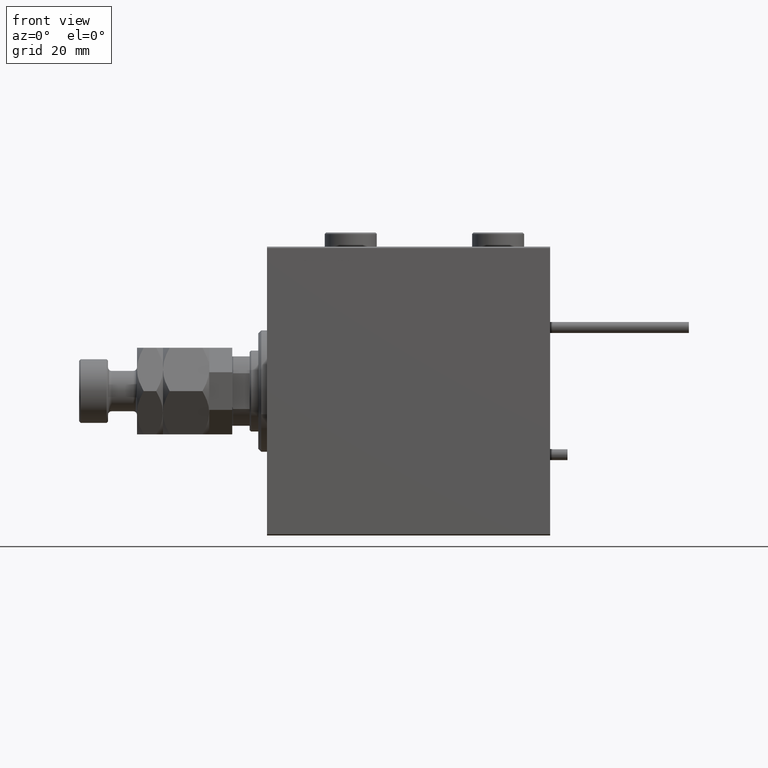
[diagram: clean part render]
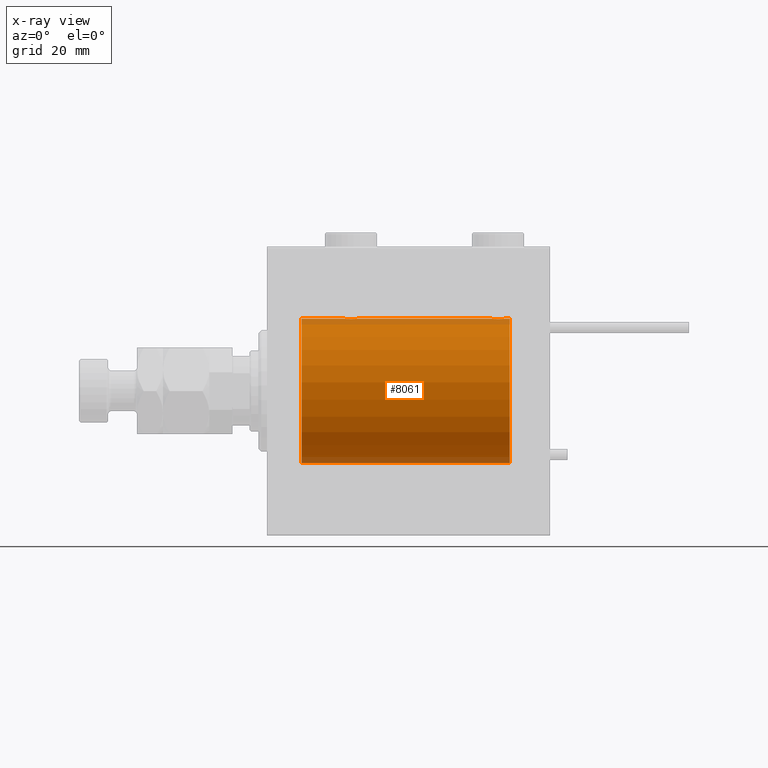
[diagram: x-ray — body ghosted, one internal face saturated and labeled with its STEP entity id]
A machine part, front view, then the same camera in x-ray: the body is ghosted and one INTERNAL B-rep face — a face not visible from any outside direction — is saturated and labeled: STEP entity #8061.
In plain terms, the highlighted cylindrical surface (partial cylindrical patch) has radius 25 mm, axis along (-1, -0, -0).
Its self-contained STEP definition (entity closure, byte-faithful):
#224 = CARTESIAN_POINT ( 'NONE',  ( 82.42014909220931429, -0.6480119923854192887, -24.99212088949390420 ) ) ;
#1283 = CARTESIAN_POINT ( 'NONE',  ( 78.34878866440890022, -1.884161199660611796, -24.92916496727982434 ) ) ;
#1881 = CARTESIAN_POINT ( 'NONE',  ( 84.00000000000000000, 3.061616997868382254E-15, -25.00000000000000000 ) ) ;
#2034 = ORIENTED_EDGE ( 'NONE', *, *, #38113, .F. ) ;
#2071 = CARTESIAN_POINT ( 'NONE',  ( 82.50000000000005684, -0.3305063766663752789, 25.00000000000000711 ) ) ;
#2136 = CARTESIAN_POINT ( 'NONE',  ( 26.62784030591392437, -0.8058335233485456328, 24.98746277938383287 ) ) ;
#2198 = CARTESIAN_POINT ( 'NONE',  ( 84.00000000000000000, 0.000000000000000000, 25.00000000000000000 ) ) ;
#2329 = CARTESIAN_POINT ( 'NONE',  ( 77.75239748980452248, -1.106703319666886065, 24.97594585958023572 ) ) ;
#2639 = EDGE_CURVE ( 'NONE', #19902, #45324, #31787, .T. ) ;
#3039 = ORIENTED_EDGE ( 'NONE', *, *, #48956, .T. ) ;
#3164 = VECTOR ( 'NONE', #40621, 1000.000000000000000 ) ;
#3673 = CARTESIAN_POINT ( 'NONE',  ( 31.16827641493957302, -1.255214705003182774, 24.96884293994578385 ) ) ;
#3927 = CARTESIAN_POINT ( 'NONE',  ( 31.50000000000000000, -0.1631750940176179276, -25.00000000000001421 ) ) ;
#3939 = CARTESIAN_POINT ( 'NONE',  ( 31.49999999999999289, -0.3305063766663730029, 25.00000000000000355 ) ) ;
#4126 = EDGE_CURVE ( 'NONE', #53110, #36376, #31856, .T. ) ;
#4138 = CYLINDRICAL_SURFACE ( 'NONE', #13040, 25.00000000000000000 ) ;
#4195 = CARTESIAN_POINT ( 'NONE',  ( 29.64904390169096615, -2.419770561643903584, -24.88263927071751169 ) ) ;
#5003 = CARTESIAN_POINT ( 'NONE',  ( 26.50000000000000355, -1.030486103406027476E-15, -25.00000000000000000 ) ) ;
#5169 = ORIENTED_EDGE ( 'NONE', *, *, #2639, .T. ) ;
#5608 = CARTESIAN_POINT ( 'NONE',  ( 79.67052319885733880, -2.483544361357268304, 24.87635491893502149 ) ) ;
#6111 = CARTESIAN_POINT ( 'NONE',  ( 79.19211657594196652, -2.371528299825746089, 24.88734287464371420 ) ) ;
#6383 = CARTESIAN_POINT ( 'NONE',  ( 78.47463817756926119, -1.987446652080266496, 24.92104239223421303 ) ) ;
#6711 = CARTESIAN_POINT ( 'NONE',  ( 27.74616804575497042, -2.169003991399871989, 24.90589728951139037 ) ) ;
#6973 = CARTESIAN_POINT ( 'NONE',  ( 30.65121133559111755, -1.884161199660619124, 24.92916496727982079 ) ) ;
#7779 = CARTESIAN_POINT ( 'NONE',  ( 81.11036796508868463, -2.245863995402891611, -24.89899750494197406 ) ) ;
#7982 = CARTESIAN_POINT ( 'NONE',  ( 30.10723845838410284, -2.247417070759899271, 24.89885693081946272 ) ) ;
#8061 = ADVANCED_FACE ( 'NONE', ( #11967 ), #4138, .F. ) ;
#8236 = CARTESIAN_POINT ( 'NONE',  ( 28.67403429960540251, -2.484007091859758543, -24.87630842367763151 ) ) ;
#8502 = CARTESIAN_POINT ( 'NONE',  ( 30.52536182243080987, -1.987446652080259835, -24.92104239223420592 ) ) ;
#8581 = CARTESIAN_POINT ( 'NONE',  ( 82.49999999999998579, -0.1631750940176179554, -25.00000000000000711 ) ) ;
#8725 = DIRECTION ( 'NONE',  ( -1.000000000000000000, -0.000000000000000000, -0.000000000000000000 ) ) ;
#8773 = CARTESIAN_POINT ( 'NONE',  ( 26.56650644760252433, -0.6588655613945860745, -24.99312727339969342 ) ) ;
#9047 = CARTESIAN_POINT ( 'NONE',  ( 28.83676410361455567, -2.500125740978187405, -24.87467329022544504 ) ) ;
#9306 = CARTESIAN_POINT ( 'NONE',  ( 31.42014909220929653, -0.6480119923854196218, -24.99212088949391131 ) ) ;
#9383 = CARTESIAN_POINT ( 'NONE',  ( 77.50000000000004263, -0.3305063766663757230, -25.00000000000002132 ) ) ;
#9459 = ORIENTED_EDGE ( 'NONE', *, *, #29476, .T. ) ;
#10158 = CARTESIAN_POINT ( 'NONE',  ( 80.32596570039464723, -2.484007091859760763, 24.87630842367763861 ) ) ;
#10412 = CARTESIAN_POINT ( 'NONE',  ( 79.35095609830904095, -2.419770561643906248, 24.88263927071751169 ) ) ;
#10685 = CARTESIAN_POINT ( 'NONE',  ( 81.10723845838413126, -2.247417070759893942, 24.89885693081947338 ) ) ;
#10695 = ORIENTED_EDGE ( 'NONE', *, *, #4126, .T. ) ;
#11831 = CARTESIAN_POINT ( 'NONE',  ( 79.83676410361458409, -2.500125740978184741, -24.87467329022545215 ) ) ;
#11967 = FACE_OUTER_BOUND ( 'NONE', #27284, .T. ) ;
#12093 = CARTESIAN_POINT ( 'NONE',  ( 80.32947680114270383, -2.483544361357259866, -24.87635491893501438 ) ) ;
#12289 = CARTESIAN_POINT ( 'NONE',  ( 30.25383195424502603, -2.169003991399866660, -24.90589728951139392 ) ) ;
#12302 = CARTESIAN_POINT ( 'NONE',  ( 27.01250184165601453, -1.525407911884367085, 24.95379469572361941 ) ) ;
#12370 = CARTESIAN_POINT ( 'NONE',  ( 81.88412382786472676, -1.651251241585097285, -24.94567559498348785 ) ) ;
#12827 = CARTESIAN_POINT ( 'NONE',  ( 28.19564339083697391, -2.372734907014166783, -24.88722742718433523 ) ) ;
#13040 = AXIS2_PLACEMENT_3D ( 'NONE', #37040, #25206, #16547 ) ;
#13093 = CARTESIAN_POINT ( 'NONE',  ( 26.50000000000000000, -0.3305063766663753344, -25.00000000000000000 ) ) ;
#13360 = CARTESIAN_POINT ( 'NONE',  ( 31.17011290280924385, -1.252049606094333800, -24.96900299967627390 ) ) ;
#13690 = EDGE_CURVE ( 'NONE', #17829, #53110, #26621, .T. ) ;
#14218 = CARTESIAN_POINT ( 'NONE',  ( 78.34616663850664509, -1.881857718844719640, 24.92933960374833902 ) ) ;
#14538 = CARTESIAN_POINT ( 'NONE',  ( 26.57985090779071413, -0.6480119923854232855, 24.99212088949390775 ) ) ;
#14730 = CARTESIAN_POINT ( 'NONE',  ( 78.88963203491135801, -2.245863995402899160, 24.89899750494197050 ) ) ;
#15067 = CARTESIAN_POINT ( 'NONE',  ( 28.83293504821939734, -2.499872792855082793, 24.87469871246082675 ) ) ;
#15607 = CARTESIAN_POINT ( 'NONE',  ( 81.65383336149336913, -1.881857718844710758, -24.92933960374833546 ) ) ;
#16288 = CARTESIAN_POINT ( 'NONE',  ( 84.00000000000000000, 0.000000000000000000, 0.000000000000000000 ) ) ;
#16409 = CARTESIAN_POINT ( 'NONE',  ( 82.48417840057655326, -0.3254210271412200095, -24.99840249400844172 ) ) ;
#16547 = DIRECTION ( 'NONE',  ( 0.000000000000000000, 0.000000000000000000, 1.000000000000000000 ) ) ;
#16649 = ORIENTED_EDGE ( 'NONE', *, *, #52383, .F. ) ;
#16875 = CARTESIAN_POINT ( 'NONE',  ( 31.24760251019550950, -1.106703319666880292, -24.97594585958023927 ) ) ;
#17213 = CARTESIAN_POINT ( 'NONE',  ( 79.19564339083696325, -2.372734907014162342, -24.88722742718433523 ) ) ;
#17748 = CARTESIAN_POINT ( 'NONE',  ( 77.75393620905936132, -1.109818057797410384, -24.97580694515541921 ) ) ;
#17829 = VERTEX_POINT ( 'NONE', #24871 ) ;
#18014 = VERTEX_POINT ( 'NONE', #1881 ) ;
#18521 = CARTESIAN_POINT ( 'NONE',  ( 77.50000000000001421, -1.940163953345817485E-23, 25.00000000000000000 ) ) ;
#18584 = CARTESIAN_POINT ( 'NONE',  ( 28.67052319885731393, -2.483544361357271413, 24.87635491893501438 ) ) ;
#19902 = VERTEX_POINT ( 'NONE', #31182 ) ;
#20405 = CARTESIAN_POINT ( 'NONE',  ( 31.50000000000000000, -3.363311788663921560E-15, 25.00000000000000000 ) ) ;
#20559 = DIRECTION ( 'NONE',  ( -1.000000000000000000, -0.000000000000000000, -0.000000000000000000 ) ) ;
#20653 = CARTESIAN_POINT ( 'NONE',  ( 30.98749815834399257, -1.525407911884361534, -24.95379469572363007 ) ) ;
#20977 = VERTEX_POINT ( 'NONE', #28750 ) ;
#21466 = CARTESIAN_POINT ( 'NONE',  ( 30.88412382786471255, -1.651251241585098617, -24.94567559498349141 ) ) ;
#21540 = CARTESIAN_POINT ( 'NONE',  ( 77.56650644760257762, -0.6588655613945836320, -24.99312727339971119 ) ) ;
#21661 = LINE ( 'NONE', #2198, #42056 ) ;
#21968 = ORIENTED_EDGE ( 'NONE', *, *, #46452, .T. ) ;
#22065 = CARTESIAN_POINT ( 'NONE',  ( 82.16827641493958367, -1.255214705003175446, 24.96884293994578030 ) ) ;
#22320 = CARTESIAN_POINT ( 'NONE',  ( 81.25084023924057419, -2.170728182476715951, 24.90574631553725027 ) ) ;
#22381 = LINE ( 'NONE', #46920, #51173 ) ;
#22575 = CARTESIAN_POINT ( 'NONE',  ( 80.80435660916305096, -2.372734907014170780, 24.88722742718433523 ) ) ;
#23168 = CARTESIAN_POINT ( 'NONE',  ( 28.19211657594193809, -2.371528299825748753, 24.88734287464371064 ) ) ;
#23440 = CARTESIAN_POINT ( 'NONE',  ( 30.88185954148646317, -1.653834020452940479, 24.94550385189585739 ) ) ;
#23879 = CARTESIAN_POINT ( 'NONE',  ( 84.00000000000000000, 0.000000000000000000, 25.00000000000000000 ) ) ;
#24172 = LINE ( 'NONE', #45185, #3164 ) ;
#24250 = CARTESIAN_POINT ( 'NONE',  ( 79.67403429960539540, -2.484007091859752769, -24.87630842367762796 ) ) ;
#24453 = CARTESIAN_POINT ( 'NONE',  ( 31.43349355239748988, -0.6588655613945876288, 24.99312727339970408 ) ) ;
#24670 = DIRECTION ( 'NONE',  ( 0.000000000000000000, 0.000000000000000000, 1.000000000000000000 ) ) ;
#24871 = CARTESIAN_POINT ( 'NONE',  ( 26.50000000000000355, -1.030486103406027476E-15, -25.00000000000000000 ) ) ;
#24982 = CARTESIAN_POINT ( 'NONE',  ( 31.37215969408608274, -0.8058335233485440785, -24.98746277938383997 ) ) ;
#25206 = DIRECTION ( 'NONE',  ( -1.000000000000000000, -0.000000000000000000, -0.000000000000000000 ) ) ;
#25309 = AXIS2_PLACEMENT_3D ( 'NONE', #16288, #32746, #48658 ) ;
#25527 = CARTESIAN_POINT ( 'NONE',  ( 31.50000000000000000, 3.061616978460191625E-15, -25.00000000000000000 ) ) ;
#25789 = CARTESIAN_POINT ( 'NONE',  ( 29.32947680114269318, -2.483544361357265196, -24.87635491893502859 ) ) ;
#26364 = CARTESIAN_POINT ( 'NONE',  ( 84.00000000000000000, 3.061616997868382254E-15, -25.00000000000000000 ) ) ;
#26621 = LINE ( 'NONE', #26364, #38984 ) ;
#26640 = CARTESIAN_POINT ( 'NONE',  ( 81.52256774340189338, -1.989585286700241484, 24.92087098724765681 ) ) ;
#26900 = CARTESIAN_POINT ( 'NONE',  ( 80.64560666148635448, -2.420689345803754833, 24.88254961038874313 ) ) ;
#27230 = CARTESIAN_POINT ( 'NONE',  ( 26.50000000000000355, -1.940558383798427991E-23, 25.00000000000000000 ) ) ;
#27284 = EDGE_LOOP ( 'NONE', ( #2034, #9459, #3039, #21968, #29273, #49486, #10695, #45769, #30852, #16649, #5169, #41931 ) ) ;
#27489 = CARTESIAN_POINT ( 'NONE',  ( 26.50000000000001066, -0.1631750940176202591, 25.00000000000001066 ) ) ;
#27626 = VECTOR ( 'NONE', #8725, 1000.000000000000000 ) ;
#27857 = LINE ( 'NONE', #48872, #44905 ) ;
#28030 = CARTESIAN_POINT ( 'NONE',  ( 80.64904390169098747, -2.419770561643898699, -24.88263927071751169 ) ) ;
#28168 = CARTESIAN_POINT ( 'NONE',  ( 11.99999999999999645, 3.061616997868382254E-15, -25.00000000000000000 ) ) ;
#28705 = DIRECTION ( 'NONE',  ( -1.000000000000000000, 0.000000000000000000, 0.000000000000000000 ) ) ;
#28750 = CARTESIAN_POINT ( 'NONE',  ( 82.50000000000001421, 3.061616978466502512E-15, -25.00000000000000000 ) ) ;
#28828 = CARTESIAN_POINT ( 'NONE',  ( 80.80788342405806191, -2.371528299825739872, -24.88734287464371775 ) ) ;
#29273 = ORIENTED_EDGE ( 'NONE', *, *, #51918, .T. ) ;
#29365 = CARTESIAN_POINT ( 'NONE',  ( 78.47743225659813504, -1.989585286700234157, -24.92087098724766747 ) ) ;
#29476 = EDGE_CURVE ( 'NONE', #18014, #20977, #38131, .T. ) ;
#29560 = CARTESIAN_POINT ( 'NONE',  ( 30.11036796508863844, -2.245863995402896052, -24.89899750494197406 ) ) ;
#29778 = CARTESIAN_POINT ( 'NONE',  ( 84.00000000000000000, 3.061616997868382254E-15, -25.00000000000000000 ) ) ;
#29821 = CARTESIAN_POINT ( 'NONE',  ( 26.50000000000000355, -1.940558383798427991E-23, 25.00000000000000000 ) ) ;
#29822 = CARTESIAN_POINT ( 'NONE',  ( 27.47743225659810307, -1.989585286700242373, -24.92087098724764616 ) ) ;
#29898 = CARTESIAN_POINT ( 'NONE',  ( 77.50000000000001421, -1.022092533403706378E-15, -25.00000000000000000 ) ) ;
#29965 = DIRECTION ( 'NONE',  ( -1.000000000000000000, -0.000000000000000000, -0.000000000000000000 ) ) ;
#30214 = VERTEX_POINT ( 'NONE', #23879 ) ;
#30460 = EDGE_CURVE ( 'NONE', #46662, #36376, #27857, .T. ) ;
#30657 = DIRECTION ( 'NONE',  ( -1.000000000000000000, -0.000000000000000000, -0.000000000000000000 ) ) ;
#30677 = CARTESIAN_POINT ( 'NONE',  ( 80.16323589638544433, -2.500125740978193178, 24.87467329022545925 ) ) ;
#30852 = ORIENTED_EDGE ( 'NONE', *, *, #52820, .T. ) ;
#30901 = CARTESIAN_POINT ( 'NONE',  ( 11.99999999999999645, 0.000000000000000000, 25.00000000000000000 ) ) ;
#30933 = CARTESIAN_POINT ( 'NONE',  ( 77.50000000000004263, -0.1631750940176218967, 25.00000000000000355 ) ) ;
#30993 = CARTESIAN_POINT ( 'NONE',  ( 29.80435660916302254, -2.372734907014176553, 24.88722742718433878 ) ) ;
#31182 = CARTESIAN_POINT ( 'NONE',  ( 77.50000000000001421, -1.940163953345817485E-23, 25.00000000000000000 ) ) ;
#31200 = CARTESIAN_POINT ( 'NONE',  ( 82.24606379094068132, -1.109818057797408608, 24.97580694515542277 ) ) ;
#31787 = B_SPLINE_CURVE_WITH_KNOTS ( 'NONE', 3,
 ( #18521, #30933, #34723, #47370, #42559, #2329, #47110, #43059, #46851, #14218, #6383, #38250, #14730, #6111, #10412, #5608, #42810, #30677, #10158, #26900, #22575, #10685, #22320, #26640, #50889, #43589, #38514, #22065, #31200, #34202, #2071, #38767 ),
 .UNSPECIFIED., .F., .F.,
 ( 4, 2, 2, 2, 2, 2, 2, 2, 2, 2, 2, 2, 2, 2, 2, 4 ),
 ( 0.007821024441662294616, 0.008309723826317902753, 0.008798423210973510891, 0.009287122595629119029, 0.009775821980284727167, 0.01026452136494033530, 0.01075322074959594344, 0.01124192013425155158, 0.01173061951890715972, 0.01221931890356276786, 0.01270801828821837599, 0.01319671767287398413, 0.01368541705752959400, 0.01417411644218520041, 0.01466281582684080854, 0.01564021459615200921 ),
 .UNSPECIFIED. ) ;
#31856 = CIRCLE ( 'NONE', #38754, 25.00000000000000000 ) ;
#32062 = VERTEX_POINT ( 'NONE', #42728 ) ;
#32067 = CARTESIAN_POINT ( 'NONE',  ( 81.52536182243080987, -1.987446652080257392, -24.92104239223420592 ) ) ;
#32541 = CARTESIAN_POINT ( 'NONE',  ( 31.24606379094068132, -1.109818057797417712, 24.97580694515542632 ) ) ;
#32608 = CARTESIAN_POINT ( 'NONE',  ( 82.37215969408606497, -0.8058335233485424132, -24.98746277938382576 ) ) ;
#32746 = DIRECTION ( 'NONE',  ( -1.000000000000000000, 0.000000000000000000, 0.000000000000000000 ) ) ;
#33076 = CARTESIAN_POINT ( 'NONE',  ( 27.74915976075945068, -2.170728182476715062, -24.90574631553725027 ) ) ;
#33346 = CARTESIAN_POINT ( 'NONE',  ( 29.80788342405805480, -2.371528299825742536, -24.88734287464372485 ) ) ;
#33599 = CARTESIAN_POINT ( 'NONE',  ( 29.16706495178060621, -2.499872792855076131, -24.87469871246082675 ) ) ;
#33674 = CARTESIAN_POINT ( 'NONE',  ( 78.11814045851359367, -1.653834020452934706, -24.94550385189586095 ) ) ;
#34122 = CARTESIAN_POINT ( 'NONE',  ( 31.50000000000000000, -3.363311788663921560E-15, 25.00000000000000000 ) ) ;
#34202 = CARTESIAN_POINT ( 'NONE',  ( 82.43349355239749343, -0.6588655613945794132, 24.99312727339970053 ) ) ;
#34327 = B_SPLINE_CURVE_WITH_KNOTS ( 'NONE', 3,
 ( #25527, #3927, #41150, #9306, #24982, #16875, #13360, #20653, #21466, #45995, #8502, #12289, #29560, #33346, #4195, #25789, #33599, #9047, #8236, #49770, #12827, #41954, #33076, #29822, #45717, #45454, #49501, #36837, #50035, #8773, #13093, #5003 ),
 .UNSPECIFIED., .F., .F.,
 ( 4, 2, 2, 2, 2, 2, 2, 2, 2, 2, 2, 2, 2, 2, 2, 4 ),
 ( 0.007821024441662306759, 0.008309723826317916631, 0.008798423210973526504, 0.009287122595629131172, 0.009775821980284737575, 0.01026452136494034398, 0.01075322074959594865, 0.01124192013425155505, 0.01173061951890716145, 0.01221931890356276612, 0.01270801828821837079, 0.01319671767287397546, 0.01368541705752958186, 0.01417411644218518826, 0.01466281582684079293, 0.01564021459615200574 ),
 .UNSPECIFIED. ) ;
#34723 = CARTESIAN_POINT ( 'NONE',  ( 77.51582159942344674, -0.3254210271412231181, 24.99840249400844883 ) ) ;
#35047 = CARTESIAN_POINT ( 'NONE',  ( 29.32596570039459749, -2.484007091859766092, 24.87630842367763506 ) ) ;
#36111 = CARTESIAN_POINT ( 'NONE',  ( 82.24760251019553436, -1.106703319666878516, -24.97594585958023927 ) ) ;
#36376 = VERTEX_POINT ( 'NONE', #30901 ) ;
#36837 = CARTESIAN_POINT ( 'NONE',  ( 26.83172358506043054, -1.255214705003176334, -24.96884293994578030 ) ) ;
#36846 = CARTESIAN_POINT ( 'NONE',  ( 28.35095609830904095, -2.419770561643911133, 24.88263927071751169 ) ) ;
#37040 = CARTESIAN_POINT ( 'NONE',  ( 84.00000000000000000, 0.000000000000000000, 0.000000000000000000 ) ) ;
#37176 = CARTESIAN_POINT ( 'NONE',  ( 82.50000000000001421, 3.061616978466502512E-15, -25.00000000000000000 ) ) ;
#37237 = EDGE_CURVE ( 'NONE', #30214, #45324, #22381, .T. ) ;
#37720 = CARTESIAN_POINT ( 'NONE',  ( 78.89276154161593979, -2.247417070759885505, -24.89885693081946272 ) ) ;
#38111 = DIRECTION ( 'NONE',  ( -1.000000000000000000, -0.000000000000000000, -0.000000000000000000 ) ) ;
#38113 = EDGE_CURVE ( 'NONE', #18014, #30214, #48520, .T. ) ;
#38131 = LINE ( 'NONE', #29778, #27626 ) ;
#38250 = CARTESIAN_POINT ( 'NONE',  ( 78.74616804575498463, -2.169003991399871989, 24.90589728951138682 ) ) ;
#38252 = CARTESIAN_POINT ( 'NONE',  ( 78.74915976075946844, -2.170728182476707957, -24.90574631553724672 ) ) ;
#38514 = CARTESIAN_POINT ( 'NONE',  ( 81.98538033717099438, -1.528152964861306806, 24.95362559291379156 ) ) ;
#38754 = AXIS2_PLACEMENT_3D ( 'NONE', #53235, #28705, #24670 ) ;
#38767 = CARTESIAN_POINT ( 'NONE',  ( 82.50000000000001421, 2.791216707898424283E-15, 25.00000000000000000 ) ) ;
#38984 = VECTOR ( 'NONE', #30657, 1000.000000000000000 ) ;
#39101 = CARTESIAN_POINT ( 'NONE',  ( 27.88963203491136866, -2.245863995402901825, 24.89899750494197761 ) ) ;
#39621 = CARTESIAN_POINT ( 'NONE',  ( 29.64560666148631896, -2.420689345803761938, 24.88254961038873958 ) ) ;
#40621 = DIRECTION ( 'NONE',  ( -1.000000000000000000, -0.000000000000000000, -0.000000000000000000 ) ) ;
#40631 = CARTESIAN_POINT ( 'NONE',  ( 30.98538033717094464, -1.528152964861313023, 24.95362559291378801 ) ) ;
#41150 = CARTESIAN_POINT ( 'NONE',  ( 31.48417840057656036, -0.3254210271412196764, -24.99840249400844883 ) ) ;
#41524 = VERTEX_POINT ( 'NONE', #46376 ) ;
#41931 = ORIENTED_EDGE ( 'NONE', *, *, #37237, .F. ) ;
#41954 = CARTESIAN_POINT ( 'NONE',  ( 27.89276154161589716, -2.247417070759889945, -24.89885693081946982 ) ) ;
#42056 = VECTOR ( 'NONE', #38111, 1000.000000000000000 ) ;
#42559 = CARTESIAN_POINT ( 'NONE',  ( 77.62784030591393503, -0.8058335233485491855, 24.98746277938383287 ) ) ;
#42561 = CARTESIAN_POINT ( 'NONE',  ( 78.01461966282911931, -1.528152964861303920, -24.95362559291379156 ) ) ;
#42728 = CARTESIAN_POINT ( 'NONE',  ( 77.50000000000001421, -1.022092533403706378E-15, -25.00000000000000000 ) ) ;
#42810 = CARTESIAN_POINT ( 'NONE',  ( 79.83293504821945419, -2.499872792855080572, 24.87469871246082675 ) ) ;
#43059 = CARTESIAN_POINT ( 'NONE',  ( 78.01250184165604651, -1.525407911884360201, 24.95379469572362297 ) ) ;
#43589 = CARTESIAN_POINT ( 'NONE',  ( 81.88185954148649159, -1.653834020452929598, 24.94550385189585029 ) ) ;
#43650 = CARTESIAN_POINT ( 'NONE',  ( 26.75239748980448695, -1.106703319666882956, 24.97594585958023217 ) ) ;
#43912 = CARTESIAN_POINT ( 'NONE',  ( 30.52256774340189338, -1.989585286700246369, 24.92087098724766037 ) ) ;
#44464 = CARTESIAN_POINT ( 'NONE',  ( 80.16706495178061687, -2.499872792855071690, -24.87469871246082320 ) ) ;
#44905 = VECTOR ( 'NONE', #20559, 1000.000000000000000 ) ;
#44926 = CARTESIAN_POINT ( 'NONE',  ( 27.34616663850662377, -1.881857718844717642, 24.92933960374833902 ) ) ;
#44953 = VERTEX_POINT ( 'NONE', #34122 ) ;
#45185 = CARTESIAN_POINT ( 'NONE',  ( 84.00000000000000000, 3.061616997868382254E-15, -25.00000000000000000 ) ) ;
#45265 = CARTESIAN_POINT ( 'NONE',  ( 79.35439333851367394, -2.420689345803747283, -24.88254961038873958 ) ) ;
#45324 = VERTEX_POINT ( 'NONE', #49899 ) ;
#45454 = CARTESIAN_POINT ( 'NONE',  ( 27.11814045851354038, -1.653834020452933373, -24.94550385189585029 ) ) ;
#45717 = CARTESIAN_POINT ( 'NONE',  ( 27.34878866440887890, -1.884161199660611352, -24.92916496727981723 ) ) ;
#45769 = ORIENTED_EDGE ( 'NONE', *, *, #30460, .F. ) ;
#45995 = CARTESIAN_POINT ( 'NONE',  ( 30.65383336149337978, -1.881857718844713645, -24.92933960374834257 ) ) ;
#46376 = CARTESIAN_POINT ( 'NONE',  ( 31.50000000000000000, 3.061616978460191625E-15, -25.00000000000000000 ) ) ;
#46452 = EDGE_CURVE ( 'NONE', #32062, #41524, #24172, .T. ) ;
#46590 = CARTESIAN_POINT ( 'NONE',  ( 77.83172358506044475, -1.255214705003175446, -24.96884293994578030 ) ) ;
#46662 = VERTEX_POINT ( 'NONE', #29821 ) ;
#46851 = CARTESIAN_POINT ( 'NONE',  ( 78.11587617213530166, -1.651251241585104834, 24.94567559498348785 ) ) ;
#46920 = CARTESIAN_POINT ( 'NONE',  ( 84.00000000000000000, 0.000000000000000000, 25.00000000000000000 ) ) ;
#47110 = CARTESIAN_POINT ( 'NONE',  ( 77.82988709719073483, -1.252049606094332024, 24.96900299967626680 ) ) ;
#47370 = CARTESIAN_POINT ( 'NONE',  ( 77.57985090779074255, -0.6480119923854228414, 24.99212088949390775 ) ) ;
#47973 = CARTESIAN_POINT ( 'NONE',  ( 30.25084023924055643, -2.170728182476721280, 24.90574631553725027 ) ) ;
#48520 = CIRCLE ( 'NONE', #25309, 25.00000000000000000 ) ;
#48658 = DIRECTION ( 'NONE',  ( 0.000000000000000000, 0.000000000000000000, 1.000000000000000000 ) ) ;
#48872 = CARTESIAN_POINT ( 'NONE',  ( 84.00000000000000000, 0.000000000000000000, 25.00000000000000000 ) ) ;
#48956 = EDGE_CURVE ( 'NONE', #20977, #32062, #49425, .T. ) ;
#48978 = CARTESIAN_POINT ( 'NONE',  ( 29.16323589638542302, -2.500125740978195843, 24.87467329022545570 ) ) ;
#49041 = CARTESIAN_POINT ( 'NONE',  ( 81.25383195424502958, -2.169003991399864439, -24.90589728951138682 ) ) ;
#49241 = CARTESIAN_POINT ( 'NONE',  ( 26.51582159942343608, -0.3254210271412226740, 24.99840249400844883 ) ) ;
#49313 = CARTESIAN_POINT ( 'NONE',  ( 81.98749815834401033, -1.525407911884364420, -24.95379469572362652 ) ) ;
#49425 = B_SPLINE_CURVE_WITH_KNOTS ( 'NONE', 3,
 ( #37176, #8581, #16409, #224, #32608, #36111, #52547, #49313, #12370, #15607, #32067, #49041, #7779, #28828, #28030, #12093, #44464, #11831, #24250, #45265, #17213, #37720, #38252, #29365, #1283, #33674, #42561, #46590, #17748, #21540, #9383, #29898 ),
 .UNSPECIFIED., .F., .F.,
 ( 4, 2, 2, 2, 2, 2, 2, 2, 2, 2, 2, 2, 2, 2, 2, 4 ),
 ( 0.007821024441662305024, 0.008309723826317909692, 0.008798423210973514361, 0.009287122595629119029, 0.009775821980284721963, 0.01026452136494032663, 0.01075322074959593130, 0.01124192013425153597, 0.01173061951890714064, 0.01221931890356274530, 0.01270801828821834997, 0.01319671767287395464, 0.01368541705752955931, 0.01417411644218516398, 0.01466281582684076865, 0.01564021459615199533 ),
 .UNSPECIFIED. ) ;
#49486 = ORIENTED_EDGE ( 'NONE', *, *, #13690, .T. ) ;
#49501 = CARTESIAN_POINT ( 'NONE',  ( 27.01461966282905180, -1.528152964861305252, -24.95362559291378446 ) ) ;
#49770 = CARTESIAN_POINT ( 'NONE',  ( 28.35439333851368815, -2.420689345803754833, -24.88254961038873958 ) ) ;
#49899 = CARTESIAN_POINT ( 'NONE',  ( 82.50000000000001421, 2.791216707898424283E-15, 25.00000000000000000 ) ) ;
#50035 = CARTESIAN_POINT ( 'NONE',  ( 26.75393620905932579, -1.109818057797413049, -24.97580694515541566 ) ) ;
#50889 = CARTESIAN_POINT ( 'NONE',  ( 81.65121133559114242, -1.884161199660608688, 24.92916496727982434 ) ) ;
#51173 = VECTOR ( 'NONE', #29965, 1000.000000000000000 ) ;
#51485 = CARTESIAN_POINT ( 'NONE',  ( 27.11587617213529100, -1.651251241585102836, 24.94567559498349141 ) ) ;
#51594 = B_SPLINE_CURVE_WITH_KNOTS ( 'NONE', 3,
 ( #27230, #27489, #49241, #14538, #2136, #43650, #53026, #12302, #51485, #44926, #52018, #6711, #39101, #23168, #36846, #18584, #15067, #48978, #35047, #39621, #30993, #7982, #47973, #43912, #6973, #23440, #40631, #3673, #32541, #24453, #3939, #20405 ),
 .UNSPECIFIED., .F., .F.,
 ( 4, 2, 2, 2, 2, 2, 2, 2, 2, 2, 2, 2, 2, 2, 2, 4 ),
 ( 0.007821024441662273799, 0.008309723826317880202, 0.008798423210973484870, 0.009287122595629091273, 0.009775821980284697676, 0.01026452136494030234, 0.01075322074959590701, 0.01124192013425151342, 0.01173061951890711982, 0.01221931890356272449, 0.01270801828821833263, 0.01319671767287393729, 0.01368541705752954196, 0.01417411644218514837, 0.01466281582684075477, 0.01564021459615196757 ),
 .UNSPECIFIED. ) ;
#51918 = EDGE_CURVE ( 'NONE', #41524, #17829, #34327, .T. ) ;
#52018 = CARTESIAN_POINT ( 'NONE',  ( 27.47463817756919369, -1.987446652080264275, 24.92104239223420592 ) ) ;
#52383 = EDGE_CURVE ( 'NONE', #19902, #44953, #21661, .T. ) ;
#52547 = CARTESIAN_POINT ( 'NONE',  ( 82.17011290280927938, -1.252049606094337797, -24.96900299967627390 ) ) ;
#52820 = EDGE_CURVE ( 'NONE', #46662, #44953, #51594, .T. ) ;
#53026 = CARTESIAN_POINT ( 'NONE',  ( 26.82988709719075260, -1.252049606094339351, 24.96900299967626680 ) ) ;
#53110 = VERTEX_POINT ( 'NONE', #28168 ) ;
#53235 = CARTESIAN_POINT ( 'NONE',  ( 11.99999999999999645, 0.000000000000000000, 0.000000000000000000 ) ) ;